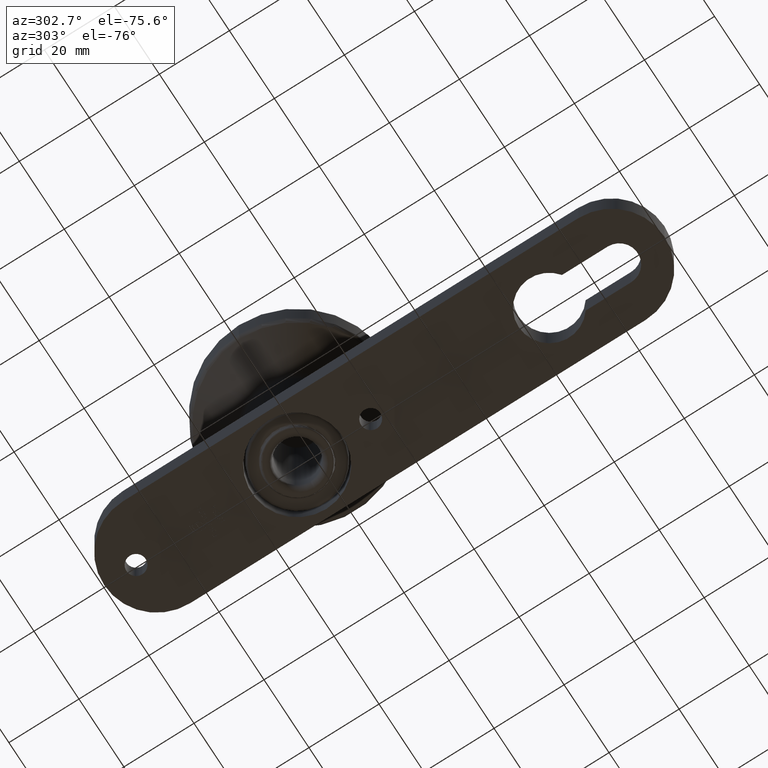
[diagram: clean part render]
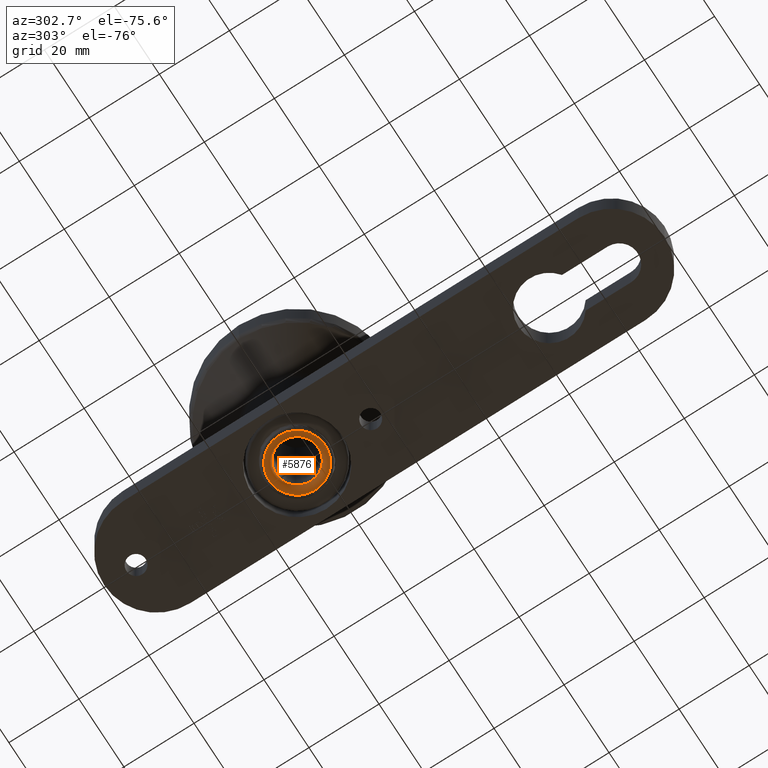
[diagram: same view with one face highlighted and labeled with its STEP entity id]
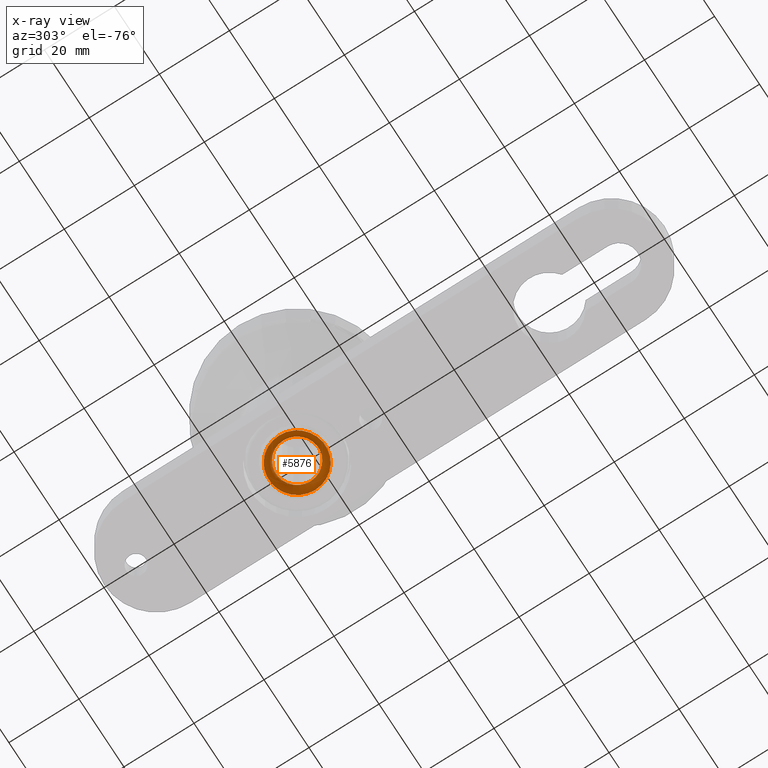
[diagram: x-ray of the same camera — body ghosted, the highlighted face saturated]
A machine part, auxiliary view. The second image highlights one B-rep face of the part: STEP entity #5876.
The next image is the same camera in x-ray: the body ghosted, the highlighted face saturated — about 0% of this face is hidden behind the body in this view.
In plain terms, the highlighted toroidal blend (fillet) surface has major radius 8.05 mm and minor (blend) radius 2 mm.
Its self-contained STEP definition (entity closure, byte-faithful):
#9 = CARTESIAN_POINT ( 'NONE',  ( 0.000000000000000000, 0.000000000000000000, -22.50000000000000000 ) ) ;
#1008 = AXIS2_PLACEMENT_3D ( 'NONE', #12304, #3881, #9407 ) ;
#1806 = VERTEX_POINT ( 'NONE', #9855 ) ;
#2316 = ORIENTED_EDGE ( 'NONE', *, *, #8034, .F. ) ;
#2565 = EDGE_LOOP ( 'NONE', ( #2924 ) ) ;
#2924 = ORIENTED_EDGE ( 'NONE', *, *, #7462, .F. ) ;
#3242 = CARTESIAN_POINT ( 'NONE',  ( 8.050000000000000711, 0.000000000000000000, -24.50000000000000000 ) ) ;
#3733 = VERTEX_POINT ( 'NONE', #3242 ) ;
#3881 = DIRECTION ( 'NONE',  ( -0.000000000000000000, -0.000000000000000000, 1.000000000000000000 ) ) ;
#4347 = DIRECTION ( 'NONE',  ( -0.000000000000000000, -0.000000000000000000, 1.000000000000000000 ) ) ;
#5076 = CIRCLE ( 'NONE', #1008, 8.050000000000000711 ) ;
#5876 = ADVANCED_FACE ( 'NONE', ( #7381, #6911 ), #7227, .T. ) ;
#5969 = EDGE_LOOP ( 'NONE', ( #2316 ) ) ;
#6646 = DIRECTION ( 'NONE',  ( 1.000000000000000000, 0.000000000000000000, 0.000000000000000000 ) ) ;
#6911 = FACE_OUTER_BOUND ( 'NONE', #2565, .T. ) ;
#7227 = TOROIDAL_SURFACE ( 'NONE', #10109, 8.050000000000000711, 2.000000000000000000 ) ;
#7381 = FACE_OUTER_BOUND ( 'NONE', #5969, .T. ) ;
#7462 = EDGE_CURVE ( 'NONE', #1806, #1806, #9527, .T. ) ;
#8034 = EDGE_CURVE ( 'NONE', #3733, #3733, #5076, .T. ) ;
#8049 = DIRECTION ( 'NONE',  ( 1.000000000000000000, 0.000000000000000000, 0.000000000000000000 ) ) ;
#8407 = AXIS2_PLACEMENT_3D ( 'NONE', #9, #8452, #6646 ) ;
#8452 = DIRECTION ( 'NONE',  ( 0.000000000000000000, 0.000000000000000000, -1.000000000000000000 ) ) ;
#9407 = DIRECTION ( 'NONE',  ( 1.000000000000000000, 0.000000000000000000, 0.000000000000000000 ) ) ;
#9527 = CIRCLE ( 'NONE', #8407, 6.049999999999999822 ) ;
#9855 = CARTESIAN_POINT ( 'NONE',  ( 6.049999999999999822, 0.000000000000000000, -22.50000000000000000 ) ) ;
#10109 = AXIS2_PLACEMENT_3D ( 'NONE', #10626, #4347, #8049 ) ;
#10626 = CARTESIAN_POINT ( 'NONE',  ( 0.000000000000000000, 0.000000000000000000, -22.50000000000000000 ) ) ;
#12304 = CARTESIAN_POINT ( 'NONE',  ( 0.000000000000000000, 0.000000000000000000, -24.50000000000000000 ) ) ;